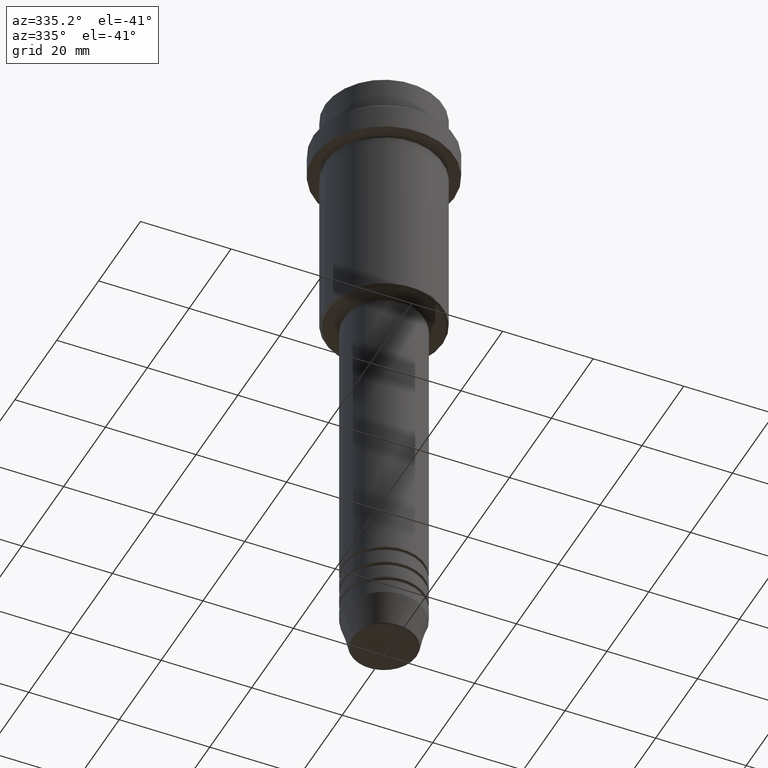
[diagram: clean part render]
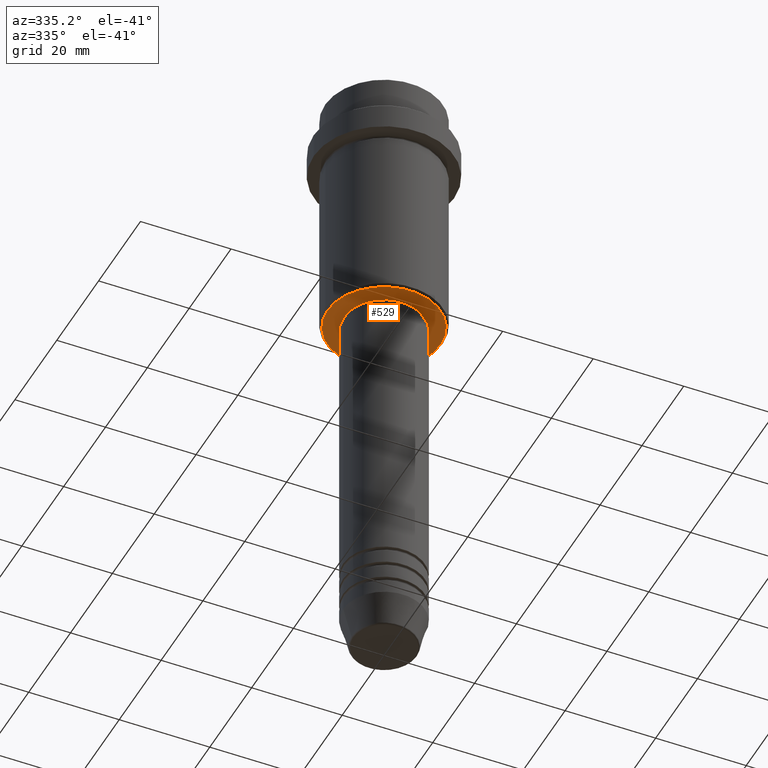
[diagram: same view with one face highlighted and labeled with its STEP entity id]
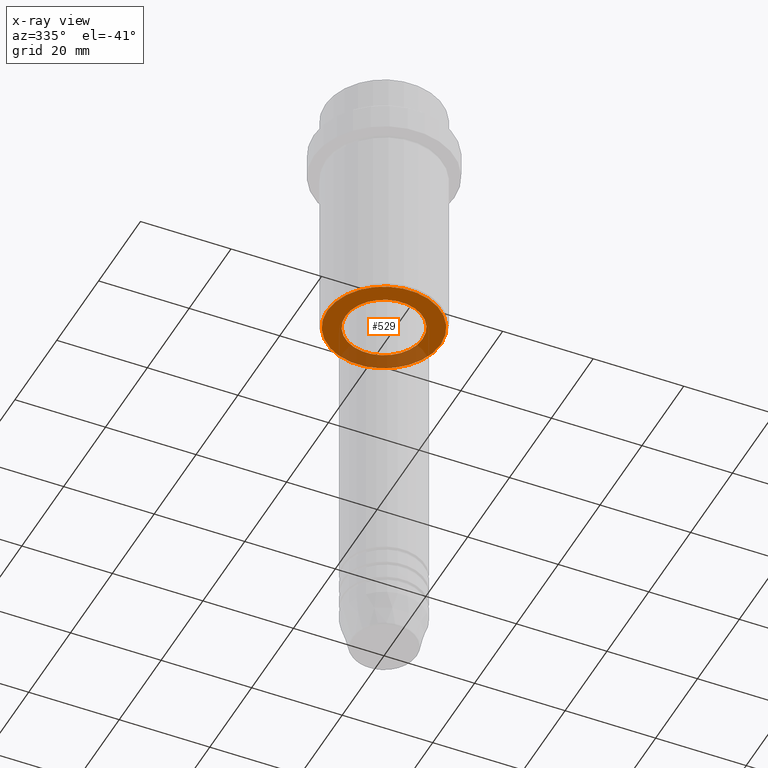
[diagram: x-ray of the same camera — body ghosted, the highlighted face saturated]
A machine part, auxiliary view. The second image highlights one B-rep face of the part: STEP entity #529.
The next image is the same camera in x-ray: the body ghosted, the highlighted face saturated — about 26% of this face is hidden behind the body in this view.
In plain terms, the highlighted planar face has unit normal (0, 0, -1).
Its self-contained STEP definition (entity closure, byte-faithful):
#34 = EDGE_LOOP ( 'NONE', ( #89, #1099 ) ) ;
#38 = AXIS2_PLACEMENT_3D ( 'NONE', #1205, #223, #885 ) ;
#89 = ORIENTED_EDGE ( 'NONE', *, *, #1340, .T. ) ;
#95 = CARTESIAN_POINT ( 'NONE',  ( 0.000000000000000000, 13.00000000000000000, -55.00000000000000711 ) ) ;
#223 = DIRECTION ( 'NONE',  ( 0.000000000000000000, 0.000000000000000000, -1.000000000000000000 ) ) ;
#231 = VERTEX_POINT ( 'NONE', #1120 ) ;
#239 = CARTESIAN_POINT ( 'NONE',  ( 0.000000000000000000, 0.000000000000000000, -55.00000000000000711 ) ) ;
#295 = VERTEX_POINT ( 'NONE', #853 ) ;
#319 = CIRCLE ( 'NONE', #321, 12.50000000000001066 ) ;
#321 = AXIS2_PLACEMENT_3D ( 'NONE', #239, #456, #1235 ) ;
#329 = FACE_BOUND ( 'NONE', #34, .T. ) ;
#333 = CARTESIAN_POINT ( 'NONE',  ( 0.000000000000000000, 0.000000000000000000, -55.00000000000000711 ) ) ;
#338 = AXIS2_PLACEMENT_3D ( 'NONE', #1415, #443, #533 ) ;
#425 = AXIS2_PLACEMENT_3D ( 'NONE', #333, #997, #773 ) ;
#443 = DIRECTION ( 'NONE',  ( -0.000000000000000000, -0.000000000000000000, 1.000000000000000000 ) ) ;
#456 = DIRECTION ( 'NONE',  ( 0.000000000000000000, 0.000000000000000000, -1.000000000000000000 ) ) ;
#517 = CIRCLE ( 'NONE', #338, 8.499999999999994671 ) ;
#522 = DIRECTION ( 'NONE',  ( 0.000000000000000000, 0.000000000000000000, -1.000000000000000000 ) ) ;
#529 = ADVANCED_FACE ( 'NONE', ( #881, #329 ), #769, .T. ) ;
#533 = DIRECTION ( 'NONE',  ( 1.000000000000000000, 0.000000000000000000, 0.000000000000000000 ) ) ;
#566 = EDGE_CURVE ( 'NONE', #295, #744, #319, .T. ) ;
#603 = CARTESIAN_POINT ( 'NONE',  ( -12.50000000000001066, 1.561424668912876097E-15, -55.00000000000000711 ) ) ;
#744 = VERTEX_POINT ( 'NONE', #603 ) ;
#769 = PLANE ( 'NONE',  #1083 ) ;
#773 = DIRECTION ( 'NONE',  ( 1.000000000000000000, 0.000000000000000000, 0.000000000000000000 ) ) ;
#853 = CARTESIAN_POINT ( 'NONE',  ( 12.50000000000001066, 0.000000000000000000, -55.00000000000000711 ) ) ;
#881 = FACE_OUTER_BOUND ( 'NONE', #956, .T. ) ;
#885 = DIRECTION ( 'NONE',  ( -1.000000000000000000, 0.000000000000000000, 0.000000000000000000 ) ) ;
#956 = EDGE_LOOP ( 'NONE', ( #1129, #1346 ) ) ;
#967 = CARTESIAN_POINT ( 'NONE',  ( -8.499999999999994671, 1.040949779275249745E-15, -55.00000000000000711 ) ) ;
#975 = EDGE_CURVE ( 'NONE', #744, #295, #1030, .T. ) ;
#982 = EDGE_CURVE ( 'NONE', #1191, #231, #983, .T. ) ;
#983 = CIRCLE ( 'NONE', #425, 8.499999999999994671 ) ;
#997 = DIRECTION ( 'NONE',  ( -0.000000000000000000, -0.000000000000000000, 1.000000000000000000 ) ) ;
#1030 = CIRCLE ( 'NONE', #38, 12.50000000000001066 ) ;
#1083 = AXIS2_PLACEMENT_3D ( 'NONE', #95, #522, #1199 ) ;
#1099 = ORIENTED_EDGE ( 'NONE', *, *, #982, .T. ) ;
#1120 = CARTESIAN_POINT ( 'NONE',  ( 8.499999999999994671, 0.000000000000000000, -55.00000000000000711 ) ) ;
#1129 = ORIENTED_EDGE ( 'NONE', *, *, #566, .T. ) ;
#1191 = VERTEX_POINT ( 'NONE', #967 ) ;
#1199 = DIRECTION ( 'NONE',  ( -1.000000000000000000, 0.000000000000000000, -0.000000000000000000 ) ) ;
#1205 = CARTESIAN_POINT ( 'NONE',  ( 0.000000000000000000, 0.000000000000000000, -55.00000000000000711 ) ) ;
#1235 = DIRECTION ( 'NONE',  ( -1.000000000000000000, 0.000000000000000000, 0.000000000000000000 ) ) ;
#1340 = EDGE_CURVE ( 'NONE', #231, #1191, #517, .T. ) ;
#1346 = ORIENTED_EDGE ( 'NONE', *, *, #975, .T. ) ;
#1415 = CARTESIAN_POINT ( 'NONE',  ( 0.000000000000000000, 0.000000000000000000, -55.00000000000000711 ) ) ;